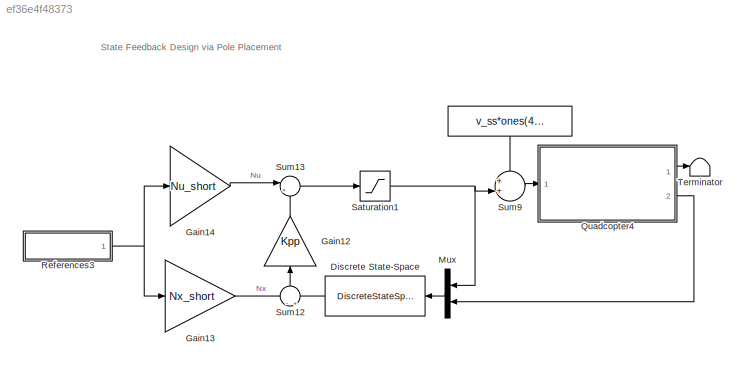
MODEL slx_ef36e4f48373
KIND model
CONFIG AbsTol = auto
CONFIG EnableMultiTasking = off
CONFIG FixedStep = auto
CONFIG MaxStep = auto
CONFIG MinStep = auto
CONFIG RelTol = 1e-3
CONFIG SampleTimeConstraint = Unconstrained
CONFIG Solver = VariableStepAuto
CONFIG SolverName = VariableStepAuto
CONFIG StartTime = 0.0
CONFIG StopTime = Tmax
BLOCK [Constant]  
  SampleTime = 0
  Value = v_ss*ones(4,1)
BLOCK [DiscreteStateSpace] Discrete State-Space
  A = sysD.A - L*sysD.C
  B = [sysD.B - L*sysD.D, L]
  C = eye(n_states)
  D = zeros(n_states, n_inputs + n_outputs)
  SampleTime = Ts
BLOCK [Gain] Gain12
  Gain = Kpp
  Multiplication = Matrix(K*u)
  OutDataTypeStr = Inherit: Inherit via internal rule
  ParamDataTypeStr = Inherit: Inherit via internal rule
  SaturateOnIntegerOverflow = off
BLOCK [Gain] Gain13
  Gain = Nx_short
  Multiplication = Matrix(K*u)
  OutDataTypeStr = Inherit: Inherit via internal rule
  ParamDataTypeStr = Inherit: Inherit via internal rule
  SaturateOnIntegerOverflow = off
BLOCK [Gain] Gain14
  Gain = Nu_short
  Multiplication = Matrix(K*u)
  OutDataTypeStr = Inherit: Inherit via internal rule
  ParamDataTypeStr = Inherit: Inherit via internal rule
  SaturateOnIntegerOverflow = off
BLOCK [Mux] Mux
  DisplayOption = bar
  Inputs = 2
  Ports = [2, 1]
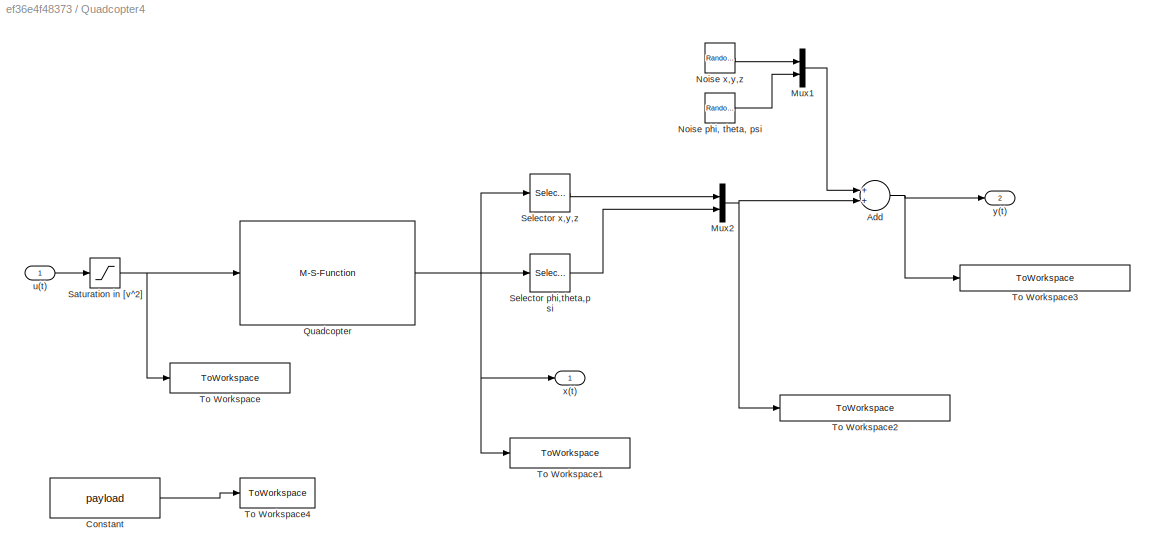
BLOCK [SubSystem] Quadcopter4
  Permissions = NoReadOrWrite
  Ports = [1, 2]
  RequestExecContextInheritance = off
BLOCK [Sum] Quadcopter4/Add
  InputSameDT = off
  OutDataTypeStr = Inherit: Inherit via internal rule
  Ports = [2, 1]
  SaturateOnIntegerOverflow = off
BLOCK [Constant] Quadcopter4/Constant
  Value = payload
BLOCK [Mux] Quadcopter4/Mux1
  DisplayOption = bar
  Inputs = 2
  Ports = [2, 1]
BLOCK [Mux] Quadcopter4/Mux2
  DisplayOption = bar
  Inputs = 2
  Ports = [2, 1]
BLOCK [RandomNumber] Quadcopter4/Noise  x,y,z
  SampleTime = 0.05
  Variance = [1 1 1]*(0.005)^2
BLOCK [RandomNumber] Quadcopter4/Noise phi, theta, psi
  SampleTime = 0.05
  Variance = [1 1 1]*(0.0087)^2
BLOCK [M-S-Function] Quadcopter4/Quadcopter
  FunctionName = quadcopter_sfunction
  Parameters = x0, payload
  Ports = [1, 1]
BLOCK [Saturate] Quadcopter4/Saturation in [v^2]
  InputPortMap = u0
  LowerLimit = 0
  Ports = [1, 1]
  UpperLimit = 100
BLOCK [Selector] Quadcopter4/Selector phi,theta,psi
  IndexOptions = Index vector (dialog)
  Indices = [7 8 9]
  OutputSizes = 1
  Ports = [1, 1]
BLOCK [Selector] Quadcopter4/Selector x,y,z
  IndexOptions = Index vector (dialog)
  Indices = [1 2 3]
  OutputSizes = 1
  Ports = [1, 1]
BLOCK [ToWorkspace] Quadcopter4/To Workspace
  MaxDataPoints = inf
  Ports = [1]
  SampleTime = -1
  SaveFormat = Structure With Time
  VariableName = inputs_quadcopter
BLOCK [ToWorkspace] Quadcopter4/To Workspace1
  MaxDataPoints = inf
  Ports = [1]
  SampleTime = -1
  SaveFormat = Structure With Time
  VariableName = states_quadcopter
BLOCK [ToWorkspace] Quadcopter4/To Workspace2
  MaxDataPoints = inf
  Ports = [1]
  SampleTime = -1
  SaveFormat = Structure With Time
  VariableName = outputs_quadcopter_nonoise
BLOCK [ToWorkspace] Quadcopter4/To Workspace3
  MaxDataPoints = inf
  Ports = [1]
  SampleTime = -1
  SaveFormat = Structure With Time
  VariableName = outputs_quadcopter_noise
BLOCK [ToWorkspace] Quadcopter4/To Workspace4
  MaxDataPoints = inf
  Ports = [1]
  SampleTime = -1
  VariableName = payload_quadcopter
BLOCK [Inport] Quadcopter4/u(t)
  IconDisplay = Port number
BLOCK [Outport] Quadcopter4/x(t)
  IconDisplay = Port number
BLOCK [Outport] Quadcopter4/y(t)
  IconDisplay = Port number
  Port = 2
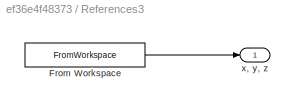
BLOCK [SubSystem] References3
  Permissions = NoReadOrWrite
  Ports = [0, 1]
  RequestExecContextInheritance = off
BLOCK [FromWorkspace] References3/From Workspace
  Interpolate = off
  OutputAfterFinalValue = Holding final value
  SampleTime = 0.1
  VariableName = references
  ZeroCross = on
BLOCK [Outport] References3/x, y, z
  IconDisplay = Port number
BLOCK [Saturate] Saturation1
  InputPortMap = u0
  LowerLimit = ones(4,1) * (- v_ss)
  Ports = [1, 1]
  UpperLimit = ones(4,1) * (100 - v_ss)
BLOCK [Sum] Sum12
  IconShape = round
  InputSameDT = off
  Inputs = -|+
  OutDataTypeStr = Inherit: Inherit via internal rule
  Ports = [2, 1]
  SaturateOnIntegerOverflow = off
BLOCK [Sum] Sum13
  IconShape = round
  InputSameDT = off
  Inputs = |+-
  OutDataTypeStr = Inherit: Inherit via internal rule
  Ports = [2, 1]
  SaturateOnIntegerOverflow = off
BLOCK [Sum] Sum9
  IconShape = round
  InputSameDT = off
  Inputs = ++|
  OutDataTypeStr = Inherit: Inherit via internal rule
  Ports = [2, 1]
  SaturateOnIntegerOverflow = off
BLOCK [Terminator] Terminator
ANNOTATION (root): State Feedback Design via Pole Placement
LINE  :1 -> Sum9:1
LINE Discrete State-Space:1 -> Sum12:2
LINE Gain12:1 -> Sum13:2
LINE Gain13:1 -> Sum12:1
LINE Gain14:1 -> Sum13:1
LINE Mux:1 -> Discrete State-Space:1
NET Quadcopter4/Add:1 -> Quadcopter4/To Workspace3:1, Quadcopter4/y(t):1
LINE Quadcopter4/Constant:1 -> Quadcopter4/To Workspace4:1
LINE Quadcopter4/Mux1:1 -> Quadcopter4/Add:1
NET Quadcopter4/Mux2:1 -> Quadcopter4/Add:2, Quadcopter4/To Workspace2:1
LINE Quadcopter4/Noise  x,y,z:1 -> Quadcopter4/Mux1:1
LINE Quadcopter4/Noise phi, theta, psi:1 -> Quadcopter4/Mux1:2
NET Quadcopter4/Quadcopter:1 -> Quadcopter4/Selector phi,theta,psi:1, Quadcopter4/Selector x,y,z:1, Quadcopter4/To Workspace1:1, Quadcopter4/x(t):1
NET Quadcopter4/Saturation in [v^2]:1 -> Quadcopter4/Quadcopter:1, Quadcopter4/To Workspace:1
LINE Quadcopter4/Selector phi,theta,psi:1 -> Quadcopter4/Mux2:2
LINE Quadcopter4/Selector x,y,z:1 -> Quadcopter4/Mux2:1
LINE Quadcopter4/u(t):1 -> Quadcopter4/Saturation in [v^2]:1
LINE Quadcopter4:1 -> Terminator:1
LINE Quadcopter4:2 -> Mux:2
LINE References3/From Workspace:1 -> References3/x, y, z:1
NET References3:1 -> Gain13:1, Gain14:1
NET Saturation1:1 -> Mux:1, Sum9:2
LINE Sum12:1 -> Gain12:1
LINE Sum13:1 -> Saturation1:1
LINE Sum9:1 -> Quadcopter4:1
note: NET lines group one-source signal fan-out (src -> all destinations, sorted); 1:1 wires keep LINE
